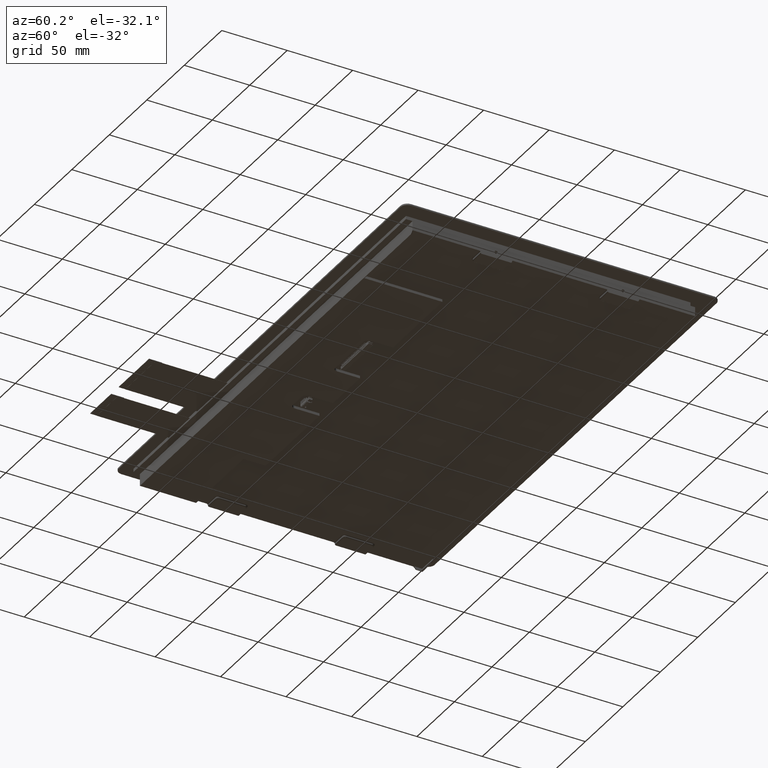
[diagram: clean part render]
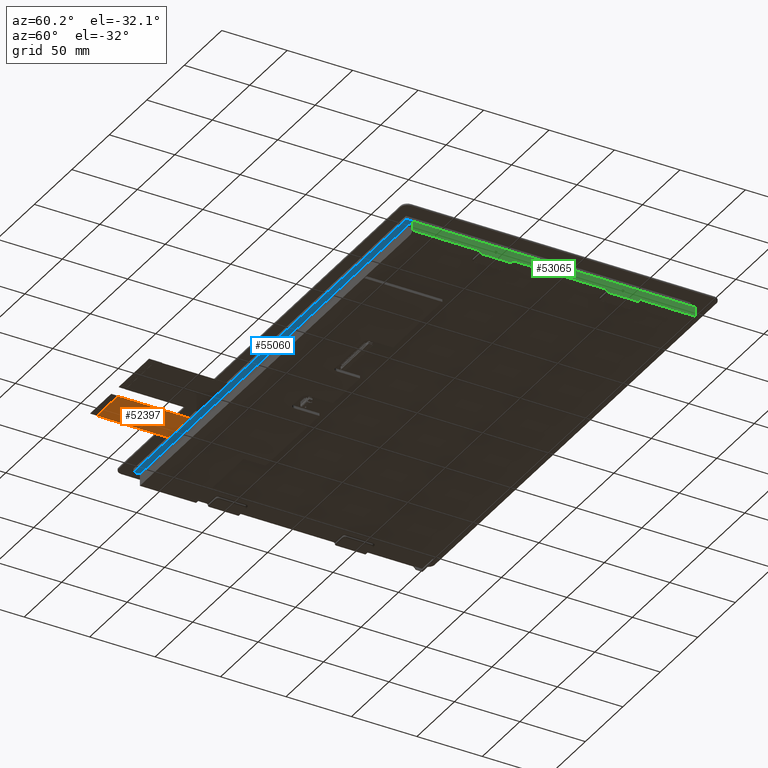
[diagram: same view with three faces highlighted in distinct colors, each labeled with its STEP entity id]
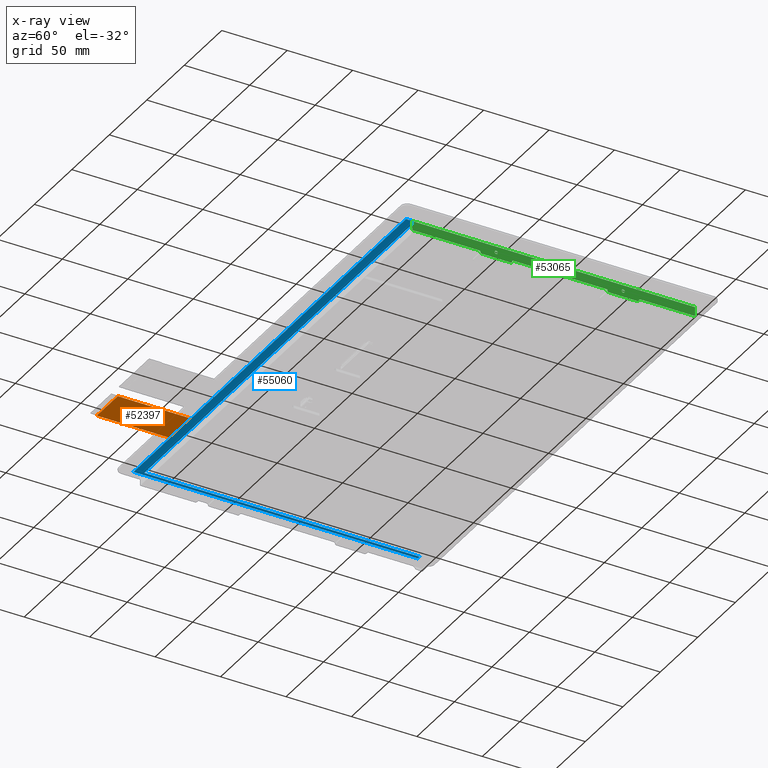
[diagram: x-ray of the same camera — body ghosted, the three highlighted faces saturated]
A machine part, auxiliary view with three faces highlighted in distinct colors.
The next image is the same camera in x-ray (body ghosted, the three faces saturated) — at least one of them is partly hidden behind the body in this view.
Their STEP definitions:

[orange] entity #52397 — the highlighted planar face has unit normal (-0, -0, 1).
#682=FACE_OUTER_BOUND('',#3405,.T.);
#3405=EDGE_LOOP('',(#34349,#34350,#34351,#34352));
#6984=LINE('',#72674,#14083);
#6994=LINE('',#72697,#14093);
#6995=LINE('',#72698,#14094);
#6996=LINE('',#72699,#14095);
#14083=VECTOR('',#58651,10.);
#14093=VECTOR('',#58671,10.);
#14094=VECTOR('',#58672,10.);
#14095=VECTOR('',#58673,10.);
#21178=VERTEX_POINT('',#72667);
#21181=VERTEX_POINT('',#72672);
#21188=VERTEX_POINT('',#72695);
#21189=VERTEX_POINT('',#72696);
#26405=EDGE_CURVE('',#21181,#21178,#6984,.T.);
#26415=EDGE_CURVE('',#21188,#21189,#6994,.T.);
#26416=EDGE_CURVE('',#21189,#21178,#6995,.T.);
#26417=EDGE_CURVE('',#21181,#21188,#6996,.T.);
#34349=ORIENTED_EDGE('',*,*,#26415,.T.);
#34350=ORIENTED_EDGE('',*,*,#26416,.T.);
#34351=ORIENTED_EDGE('',*,*,#26405,.F.);
#34352=ORIENTED_EDGE('',*,*,#26417,.T.);
#50068=PLANE('',#55146);
#52397=ADVANCED_FACE('',(#682),#50068,.F.);
#55146=AXIS2_PLACEMENT_3D('',#72694,#58669,#58670);
#58651=DIRECTION('',(-1.,0.,-1.96171481389915E-31));
#58669=DIRECTION('center_axis',(-1.96171481389915E-31,-1.20602180265444E-32,
1.));
#58670=DIRECTION('ref_axis',(1.,0.,1.96171481389915E-31));
#58671=DIRECTION('',(-1.,2.36587083615256E-63,-1.96171481389915E-31));
#58672=DIRECTION('',(2.96059473233377E-16,1.,0.));
#58673=DIRECTION('',(0.,-1.,0.));
#72667=CARTESIAN_POINT('',(-136.07,-112.1,-2.35));
#72672=CARTESIAN_POINT('',(-108.07,-112.1,-2.35));
#72674=CARTESIAN_POINT('',(29.19,-112.1,-2.35));
#72694=CARTESIAN_POINT('Origin',(-122.07,-142.1,-2.35));
#72695=CARTESIAN_POINT('',(-108.07,-167.1,-2.35));
#72696=CARTESIAN_POINT('',(-136.07,-167.1,-2.35));
#72697=CARTESIAN_POINT('',(-115.07,-167.1,-2.35));
#72698=CARTESIAN_POINT('',(-136.07,-172.1,-2.35));
#72699=CARTESIAN_POINT('',(-108.07,-112.1,-2.35));

[blue] entity #55060 — the highlighted planar face has unit normal (0, 0, -1).
#3345=FACE_OUTER_BOUND('',#6212,.T.);
#6212=EDGE_LOOP('',(#49863,#49864,#49865,#49866,#49867,#49868));
#6975=LINE('',#72657,#14074);
#6986=LINE('',#72678,#14085);
#6987=LINE('',#72681,#14086);
#6993=LINE('',#72692,#14092);
#13935=LINE('',#88531,#21034);
#13944=LINE('',#88548,#21043);
#14074=VECTOR('',#58642,10.);
#14085=VECTOR('',#58655,10.);
#14086=VECTOR('',#58658,10.);
#14092=VECTOR('',#58666,10.);
#21034=VECTOR('',#72368,10.);
#21043=VECTOR('',#72387,10.);
#21172=VERTEX_POINT('',#72654);
#21173=VERTEX_POINT('',#72656);
#21182=VERTEX_POINT('',#72676);
#21183=VERTEX_POINT('',#72680);
#21187=VERTEX_POINT('',#72690);
#26299=VERTEX_POINT('',#88529);
#26396=EDGE_CURVE('',#21173,#21172,#6975,.T.);
#26407=EDGE_CURVE('',#21172,#21182,#6986,.T.);
#26408=EDGE_CURVE('',#21183,#21173,#6987,.T.);
#26414=EDGE_CURVE('',#21182,#21187,#6993,.T.);
#34147=EDGE_CURVE('',#21187,#26299,#13935,.T.);
#34156=EDGE_CURVE('',#26299,#21183,#13944,.T.);
#49863=ORIENTED_EDGE('',*,*,#34147,.T.);
#49864=ORIENTED_EDGE('',*,*,#34156,.T.);
#49865=ORIENTED_EDGE('',*,*,#26408,.T.);
#49866=ORIENTED_EDGE('',*,*,#26396,.T.);
#49867=ORIENTED_EDGE('',*,*,#26407,.T.);
#49868=ORIENTED_EDGE('',*,*,#26414,.T.);
#52341=PLANE('',#58536);
#55060=ADVANCED_FACE('',(#3345),#52341,.T.);
#58536=AXIS2_PLACEMENT_3D('',#88565,#72410,#72411);
#58642=DIRECTION('',(-1.,0.,0.));
#58655=DIRECTION('',(0.,1.,0.));
#58658=DIRECTION('',(-1.6349349649335E-16,-1.,0.));
#58666=DIRECTION('',(1.,0.,0.));
#72368=DIRECTION('',(1.23016401620515E-16,-1.,0.));
#72387=DIRECTION('',(1.,-1.60024049541397E-16,0.));
#72410=DIRECTION('center_axis',(0.,0.,-1.));
#72411=DIRECTION('ref_axis',(-1.,0.,0.));
#72654=CARTESIAN_POINT('',(-183.15,-112.1,-3.6));
#72656=CARTESIAN_POINT('',(180.45,-112.1,-3.6));
#72657=CARTESIAN_POINT('',(-183.15,-112.1,-3.6));
#72676=CARTESIAN_POINT('',(-183.15,105.2,-3.6));
#72678=CARTESIAN_POINT('',(-183.15,105.2,-3.6));
#72680=CARTESIAN_POINT('',(180.45,-105.3,-3.6));
#72681=CARTESIAN_POINT('',(180.45,-112.1,-3.6));
#72690=CARTESIAN_POINT('',(-180.55,105.2,-3.59999999999998));
#72692=CARTESIAN_POINT('',(180.45,105.2,-3.6));
#88529=CARTESIAN_POINT('',(-180.55,-105.3,-3.6));
#88531=CARTESIAN_POINT('',(-180.55,50.875,-3.6));
#88548=CARTESIAN_POINT('',(-90.95,-105.3,-3.6));
#88565=CARTESIAN_POINT('Origin',(-1.35000000000002,-3.44999999999999,-3.6));

[green] entity #53065 — the highlighted planar face has unit normal (1, 0, 0).
#566=FACE_BOUND('',#4121,.T.);
#567=FACE_BOUND('',#4122,.T.);
#1350=FACE_OUTER_BOUND('',#4120,.T.);
#4120=EDGE_LOOP('',(#38405,#38406,#38407,#38408,#38409,#38410,#38411,#38412,
#38413,#38414,#38415,#38416,#38417,#38418,#38419,#38420,#38421));
#4121=EDGE_LOOP('',(#38422,#38423));
#4122=EDGE_LOOP('',(#38424,#38425));
#6267=CIRCLE('',#55730,1.2295);
#6268=CIRCLE('',#55731,1.2295);
#6271=CIRCLE('',#55736,1.2295);
#6272=CIRCLE('',#55737,1.2295);
#6297=CIRCLE('',#55789,1.);
#6304=CIRCLE('',#55798,1.);
#6305=CIRCLE('',#55800,1.);
#6312=CIRCLE('',#55809,1.);
#6330=CIRCLE('',#55834,1.);
#6336=CIRCLE('',#55844,1.);
#6338=CIRCLE('',#55847,1.);
#6344=CIRCLE('',#55857,1.);
#8658=LINE('',#76027,#15757);
#8661=LINE('',#76034,#15760);
#8749=LINE('',#76597,#15848);
#8753=LINE('',#76610,#15852);
#8833=LINE('',#76968,#15932);
#8834=LINE('',#76969,#15933);
#8835=LINE('',#76971,#15934);
#9027=LINE('',#77364,#16126);
#9028=LINE('',#77365,#16127);
#15757=VECTOR('',#61451,10.);
#15760=VECTOR('',#61456,10.);
#15848=VECTOR('',#61646,10.);
#15852=VECTOR('',#61656,10.);
#15932=VECTOR('',#61964,10.);
#15933=VECTOR('',#61965,10.);
#15934=VECTOR('',#61966,10.);
#16126=VECTOR('',#62184,10.);
#16127=VECTOR('',#62185,10.);
#22296=VERTEX_POINT('',#76024);
#22297=VERTEX_POINT('',#76026);
#22298=VERTEX_POINT('',#76030);
#22300=VERTEX_POINT('',#76033);
#22379=VERTEX_POINT('',#76528);
#22380=VERTEX_POINT('',#76529);
#22383=VERTEX_POINT('',#76539);
#22384=VERTEX_POINT('',#76540);
#22405=VERTEX_POINT('',#76593);
#22407=VERTEX_POINT('',#76596);
#22411=VERTEX_POINT('',#76606);
#22413=VERTEX_POINT('',#76609);
#22456=VERTEX_POINT('',#76732);
#22461=VERTEX_POINT('',#76766);
#22462=VERTEX_POINT('',#76770);
#22467=VERTEX_POINT('',#76804);
#22481=VERTEX_POINT('',#76886);
#22485=VERTEX_POINT('',#76902);
#22487=VERTEX_POINT('',#76908);
#22491=VERTEX_POINT('',#76924);
#22506=VERTEX_POINT('',#76970);
#28079=EDGE_CURVE('',#22296,#22297,#8658,.T.);
#28082=EDGE_CURVE('',#22300,#22298,#8661,.T.);
#28195=EDGE_CURVE('',#22379,#22380,#6267,.T.);
#28196=EDGE_CURVE('',#22380,#22379,#6268,.T.);
#28200=EDGE_CURVE('',#22383,#22384,#6271,.T.);
#28201=EDGE_CURVE('',#22384,#22383,#6272,.T.);
#28226=EDGE_CURVE('',#22405,#22407,#8749,.T.);
#28232=EDGE_CURVE('',#22411,#22413,#8753,.T.);
#28293=EDGE_CURVE('',#22456,#22411,#6297,.T.);
#28302=EDGE_CURVE('',#22413,#22461,#6304,.T.);
#28304=EDGE_CURVE('',#22462,#22405,#6305,.T.);
#28313=EDGE_CURVE('',#22407,#22467,#6312,.T.);
#28339=EDGE_CURVE('',#22481,#22456,#6330,.T.);
#28346=EDGE_CURVE('',#22461,#22485,#6336,.T.);
#28350=EDGE_CURVE('',#22487,#22462,#6338,.T.);
#28357=EDGE_CURVE('',#22467,#22491,#6344,.T.);
#28380=EDGE_CURVE('',#22487,#22297,#8833,.T.);
#28381=EDGE_CURVE('',#22481,#22491,#8834,.T.);
#28382=EDGE_CURVE('',#22506,#22485,#8835,.T.);
#28580=EDGE_CURVE('',#22506,#22298,#9027,.T.);
#28581=EDGE_CURVE('',#22296,#22300,#9028,.T.);
#38405=ORIENTED_EDGE('',*,*,#28580,.F.);
#38406=ORIENTED_EDGE('',*,*,#28382,.T.);
#38407=ORIENTED_EDGE('',*,*,#28346,.F.);
#38408=ORIENTED_EDGE('',*,*,#28302,.F.);
#38409=ORIENTED_EDGE('',*,*,#28232,.F.);
#38410=ORIENTED_EDGE('',*,*,#28293,.F.);
#38411=ORIENTED_EDGE('',*,*,#28339,.F.);
#38412=ORIENTED_EDGE('',*,*,#28381,.T.);
#38413=ORIENTED_EDGE('',*,*,#28357,.F.);
#38414=ORIENTED_EDGE('',*,*,#28313,.F.);
#38415=ORIENTED_EDGE('',*,*,#28226,.F.);
#38416=ORIENTED_EDGE('',*,*,#28304,.F.);
#38417=ORIENTED_EDGE('',*,*,#28350,.F.);
#38418=ORIENTED_EDGE('',*,*,#28380,.T.);
#38419=ORIENTED_EDGE('',*,*,#28079,.F.);
#38420=ORIENTED_EDGE('',*,*,#28581,.T.);
#38421=ORIENTED_EDGE('',*,*,#28082,.T.);
#38422=ORIENTED_EDGE('',*,*,#28195,.T.);
#38423=ORIENTED_EDGE('',*,*,#28196,.T.);
#38424=ORIENTED_EDGE('',*,*,#28200,.T.);
#38425=ORIENTED_EDGE('',*,*,#28201,.T.);
#50672=PLANE('',#55886);
#53065=ADVANCED_FACE('',(#1350,#566,#567),#50672,.T.);
#55730=AXIS2_PLACEMENT_3D('',#76530,#61579,#61580);
#55731=AXIS2_PLACEMENT_3D('',#76531,#61581,#61582);
#55736=AXIS2_PLACEMENT_3D('',#76541,#61592,#61593);
#55737=AXIS2_PLACEMENT_3D('',#76542,#61594,#61595);
#55789=AXIS2_PLACEMENT_3D('',#76733,#61765,#61766);
#55798=AXIS2_PLACEMENT_3D('',#76767,#61785,#61786);
#55800=AXIS2_PLACEMENT_3D('',#76771,#61790,#61791);
#55809=AXIS2_PLACEMENT_3D('',#76805,#61810,#61811);
#55834=AXIS2_PLACEMENT_3D('',#76888,#61868,#61869);
#55844=AXIS2_PLACEMENT_3D('',#76903,#61889,#61890);
#55847=AXIS2_PLACEMENT_3D('',#76910,#61897,#61898);
#55857=AXIS2_PLACEMENT_3D('',#76925,#61918,#61919);
#55886=AXIS2_PLACEMENT_3D('',#77363,#62182,#62183);
#61451=DIRECTION('',(0.,0.,-1.));
#61456=DIRECTION('',(0.,0.,-1.));
#61579=DIRECTION('center_axis',(-1.,0.,0.));
#61580=DIRECTION('ref_axis',(0.,0.,-1.));
#61581=DIRECTION('center_axis',(-1.,0.,0.));
#61582=DIRECTION('ref_axis',(0.,0.,-1.));
#61592=DIRECTION('center_axis',(-1.,0.,0.));
#61593=DIRECTION('ref_axis',(0.,0.,-1.));
#61594=DIRECTION('center_axis',(-1.,0.,0.));
#61595=DIRECTION('ref_axis',(0.,0.,-1.));
#61646=DIRECTION('',(0.,-1.,0.));
#61656=DIRECTION('',(0.,-1.,0.));
#61765=DIRECTION('center_axis',(-1.,0.,0.));
#61766=DIRECTION('ref_axis',(0.,0.707106781186546,-0.707106781186549));
#61785=DIRECTION('center_axis',(-1.,0.,0.));
#61786=DIRECTION('ref_axis',(0.,-0.707106781186546,-0.707106781186549));
#61790=DIRECTION('center_axis',(-1.,0.,0.));
#61791=DIRECTION('ref_axis',(0.,0.707106781186546,-0.707106781186549));
#61810=DIRECTION('center_axis',(-1.,0.,0.));
#61811=DIRECTION('ref_axis',(0.,-0.70710678118654,-0.707106781186555));
#61868=DIRECTION('center_axis',(1.,0.,0.));
#61869=DIRECTION('ref_axis',(0.,-0.707106781186546,0.707106781186549));
#61889=DIRECTION('center_axis',(1.,0.,0.));
#61890=DIRECTION('ref_axis',(0.,0.707106781186546,0.707106781186549));
#61897=DIRECTION('center_axis',(1.,0.,0.));
#61898=DIRECTION('ref_axis',(0.,-0.707106781186546,0.707106781186549));
#61918=DIRECTION('center_axis',(1.,0.,0.));
#61919=DIRECTION('ref_axis',(0.,0.707106781186546,0.707106781186549));
#61964=DIRECTION('',(0.,1.,0.));
#61965=DIRECTION('',(0.,1.,0.));
#61966=DIRECTION('',(0.,1.,0.));
#62182=DIRECTION('center_axis',(1.,0.,0.));
#62183=DIRECTION('ref_axis',(0.,-1.,0.));
#62184=DIRECTION('',(0.,-1.,0.));
#62185=DIRECTION('',(0.,-1.,0.));
#76024=CARTESIAN_POINT('',(181.9,107.95,-4.72));
#76026=CARTESIAN_POINT('',(181.9,107.95,-11.79));
#76027=CARTESIAN_POINT('',(181.9,107.95,-4.72));
#76030=CARTESIAN_POINT('',(181.9,-107.95,-11.79));
#76033=CARTESIAN_POINT('',(181.9,-107.95,-4.72));
#76034=CARTESIAN_POINT('',(181.9,-107.95,-4.72));
#76528=CARTESIAN_POINT('',(181.9,-44.,-10.4495));
#76529=CARTESIAN_POINT('',(181.9,-44.,-7.99050000000001));
#76530=CARTESIAN_POINT('Origin',(181.9,-44.,-9.22000000000001));
#76531=CARTESIAN_POINT('Origin',(181.9,-44.,-9.22000000000001));
#76539=CARTESIAN_POINT('',(181.9,53.,-10.4495));
#76540=CARTESIAN_POINT('',(181.9,53.,-7.99049999999999));
#76541=CARTESIAN_POINT('Origin',(181.9,53.,-9.22));
#76542=CARTESIAN_POINT('Origin',(181.9,53.,-9.22));
#76593=CARTESIAN_POINT('',(181.9,64.,-13.79));
#76596=CARTESIAN_POINT('',(181.9,42.,-13.79));
#76597=CARTESIAN_POINT('',(181.9,107.95,-13.79));
#76606=CARTESIAN_POINT('',(181.9,-33.,-13.79));
#76609=CARTESIAN_POINT('',(181.9,-55.,-13.79));
#76610=CARTESIAN_POINT('',(181.9,107.95,-13.79));
#76732=CARTESIAN_POINT('',(181.9,-32.,-12.79));
#76733=CARTESIAN_POINT('Origin',(181.9,-33.,-12.79));
#76766=CARTESIAN_POINT('',(181.9,-56.,-12.79));
#76767=CARTESIAN_POINT('Origin',(181.9,-55.,-12.79));
#76770=CARTESIAN_POINT('',(181.9,65.,-12.79));
#76771=CARTESIAN_POINT('Origin',(181.9,64.,-12.79));
#76804=CARTESIAN_POINT('',(181.9,41.,-12.79));
#76805=CARTESIAN_POINT('Origin',(181.9,42.,-12.79));
#76886=CARTESIAN_POINT('',(181.9,-31.,-11.79));
#76888=CARTESIAN_POINT('Origin',(181.9,-31.,-12.79));
#76902=CARTESIAN_POINT('',(181.9,-57.,-11.79));
#76903=CARTESIAN_POINT('Origin',(181.9,-57.,-12.79));
#76908=CARTESIAN_POINT('',(181.9,66.,-11.79));
#76910=CARTESIAN_POINT('Origin',(181.9,66.,-12.79));
#76924=CARTESIAN_POINT('',(181.9,40.,-11.79));
#76925=CARTESIAN_POINT('Origin',(181.9,40.,-12.79));
#76968=CARTESIAN_POINT('',(181.9,25.3694656667092,-11.79));
#76969=CARTESIAN_POINT('',(181.9,25.3694656667092,-11.79));
#76970=CARTESIAN_POINT('',(181.9,-107.45,-11.79));
#76971=CARTESIAN_POINT('',(181.9,25.3694656667092,-11.79));
#77363=CARTESIAN_POINT('Origin',(181.9,107.95,-4.72));
#77364=CARTESIAN_POINT('',(181.9,53.975,-11.79));
#77365=CARTESIAN_POINT('',(181.9,107.95,-4.72));